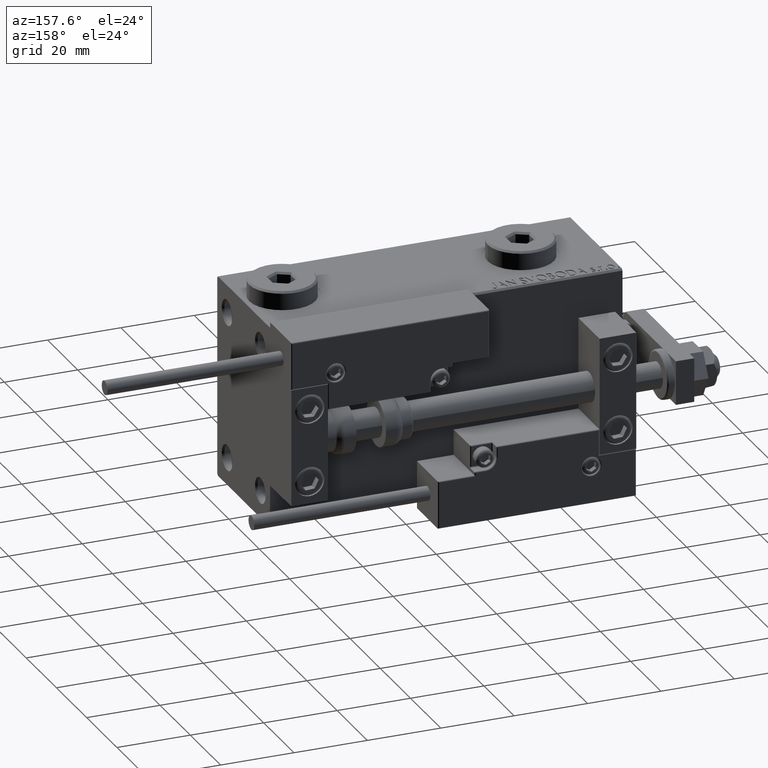
[diagram: clean part render]
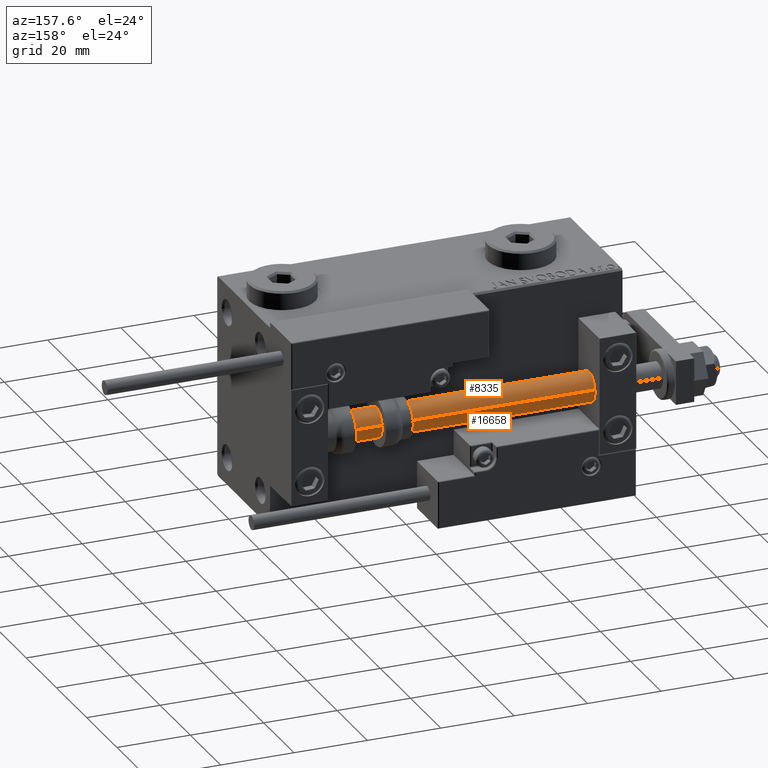
[diagram: same view with one multi-face feature highlighted, each face labeled with its STEP entity id]
A machine part, auxiliary view. The highlighted faces form ONE feature: a constant-radius fillet chain: 2 tangent blend faces with common blend radius 4 mm. The faces share edges in the B-rep.
Their STEP definitions:
[1] entity #8335 (Cylinder):
#1564 = DIRECTION ( 'NONE',  ( 1.000000000000000000, 0.000000000000000000, 0.000000000000000000 ) ) ;
#2953 = AXIS2_PLACEMENT_3D ( 'NONE', #23759, #15511, #31731 ) ;
#4602 = EDGE_CURVE ( 'NONE', #37603, #23300, #21776, .T. ) ;
#6049 = CARTESIAN_POINT ( 'NONE',  ( 4.000000000000000000, 4.898587196589412829E-16, 96.00000000000000000 ) ) ;
#6079 = DIRECTION ( 'NONE',  ( -0.000000000000000000, -0.000000000000000000, 1.000000000000000000 ) ) ;
#7362 = ORIENTED_EDGE ( 'NONE', *, *, #4602, .T. ) ;
#8335 = ADVANCED_FACE ( 'NONE', ( #23059 ), #38470, .T. ) ;
#9534 = CARTESIAN_POINT ( 'NONE',  ( 0.000000000000000000, 0.000000000000000000, 2.000000000000029310 ) ) ;
#11443 = CIRCLE ( 'NONE', #2953, 4.000000000000000000 ) ;
#14154 = AXIS2_PLACEMENT_3D ( 'NONE', #9534, #6079, #1564 ) ;
#15150 = ORIENTED_EDGE ( 'NONE', *, *, #25558, .T. ) ;
#15511 = DIRECTION ( 'NONE',  ( 0.000000000000000000, 0.000000000000000000, 1.000000000000000000 ) ) ;
#17189 = ORIENTED_EDGE ( 'NONE', *, *, #42707, .F. ) ;
#19423 = CARTESIAN_POINT ( 'NONE',  ( -4.000000000000000000, 0.000000000000000000, 96.00000000000000000 ) ) ;
#21444 = ORIENTED_EDGE ( 'NONE', *, *, #51808, .F. ) ;
#21593 = DIRECTION ( 'NONE',  ( -0.000000000000000000, -0.000000000000000000, -1.000000000000000000 ) ) ;
#21776 = CIRCLE ( 'NONE', #14154, 4.000000000000000000 ) ;
#21897 = EDGE_LOOP ( 'NONE', ( #21444, #15150, #7362, #17189 ) ) ;
#23059 = FACE_OUTER_BOUND ( 'NONE', #21897, .T. ) ;
#23300 = VERTEX_POINT ( 'NONE', #31666 ) ;
#23759 = CARTESIAN_POINT ( 'NONE',  ( 0.000000000000000000, 0.000000000000000000, 96.00000000000000000 ) ) ;
#25201 = VERTEX_POINT ( 'NONE', #42368 ) ;
#25558 = EDGE_CURVE ( 'NONE', #42599, #37603, #41770, .T. ) ;
#26272 = CARTESIAN_POINT ( 'NONE',  ( 4.000000000000000000, 4.898587196589412829E-16, 2.000000000000029310 ) ) ;
#30248 = DIRECTION ( 'NONE',  ( -0.000000000000000000, -0.000000000000000000, -1.000000000000000000 ) ) ;
#30748 = VECTOR ( 'NONE', #21593, 1000.000000000000000 ) ;
#31666 = CARTESIAN_POINT ( 'NONE',  ( -4.000000000000000000, 0.000000000000000000, 2.000000000000029310 ) ) ;
#31731 = DIRECTION ( 'NONE',  ( 1.000000000000000000, 0.000000000000000000, 0.000000000000000000 ) ) ;
#32175 = LINE ( 'NONE', #19423, #34991 ) ;
#34991 = VECTOR ( 'NONE', #51815, 1000.000000000000000 ) ;
#37603 = VERTEX_POINT ( 'NONE', #26272 ) ;
#38036 = AXIS2_PLACEMENT_3D ( 'NONE', #39256, #30248, #46942 ) ;
#38057 = CARTESIAN_POINT ( 'NONE',  ( 4.000000000000000000, 4.898587196589412829E-16, 96.00000000000000000 ) ) ;
#38470 = CYLINDRICAL_SURFACE ( 'NONE', #38036, 4.000000000000000000 ) ;
#39256 = CARTESIAN_POINT ( 'NONE',  ( 0.000000000000000000, 0.000000000000000000, 96.00000000000000000 ) ) ;
#41770 = LINE ( 'NONE', #38057, #30748 ) ;
#42368 = CARTESIAN_POINT ( 'NONE',  ( -4.000000000000000000, 0.000000000000000000, 96.00000000000000000 ) ) ;
#42599 = VERTEX_POINT ( 'NONE', #6049 ) ;
#42707 = EDGE_CURVE ( 'NONE', #25201, #23300, #32175, .T. ) ;
#46942 = DIRECTION ( 'NONE',  ( -1.000000000000000000, 0.000000000000000000, 0.000000000000000000 ) ) ;
#51808 = EDGE_CURVE ( 'NONE', #42599, #25201, #11443, .T. ) ;
#51815 = DIRECTION ( 'NONE',  ( -0.000000000000000000, -0.000000000000000000, -1.000000000000000000 ) ) ;
[2] entity #16658 (Cylinder):
#181 = EDGE_CURVE ( 'NONE', #25201, #42599, #50471, .T. ) ;
#3596 = CIRCLE ( 'NONE', #35707, 4.000000000000000000 ) ;
#6049 = CARTESIAN_POINT ( 'NONE',  ( 4.000000000000000000, 4.898587196589412829E-16, 96.00000000000000000 ) ) ;
#6633 = AXIS2_PLACEMENT_3D ( 'NONE', #9836, #34267, #17517 ) ;
#6968 = DIRECTION ( 'NONE',  ( 1.000000000000000000, 0.000000000000000000, 0.000000000000000000 ) ) ;
#8879 = ORIENTED_EDGE ( 'NONE', *, *, #181, .F. ) ;
#9389 = ORIENTED_EDGE ( 'NONE', *, *, #25973, .T. ) ;
#9836 = CARTESIAN_POINT ( 'NONE',  ( 0.000000000000000000, 0.000000000000000000, 96.00000000000000000 ) ) ;
#16658 = ADVANCED_FACE ( 'NONE', ( #22320 ), #33744, .T. ) ;
#17517 = DIRECTION ( 'NONE',  ( -1.000000000000000000, 0.000000000000000000, 0.000000000000000000 ) ) ;
#18106 = EDGE_LOOP ( 'NONE', ( #24678, #8879, #41389, #9389 ) ) ;
#19423 = CARTESIAN_POINT ( 'NONE',  ( -4.000000000000000000, 0.000000000000000000, 96.00000000000000000 ) ) ;
#21593 = DIRECTION ( 'NONE',  ( -0.000000000000000000, -0.000000000000000000, -1.000000000000000000 ) ) ;
#22320 = FACE_OUTER_BOUND ( 'NONE', #18106, .T. ) ;
#23300 = VERTEX_POINT ( 'NONE', #31666 ) ;
#24678 = ORIENTED_EDGE ( 'NONE', *, *, #25558, .F. ) ;
#25201 = VERTEX_POINT ( 'NONE', #42368 ) ;
#25558 = EDGE_CURVE ( 'NONE', #42599, #37603, #41770, .T. ) ;
#25973 = EDGE_CURVE ( 'NONE', #23300, #37603, #3596, .T. ) ;
#26272 = CARTESIAN_POINT ( 'NONE',  ( 4.000000000000000000, 4.898587196589412829E-16, 2.000000000000029310 ) ) ;
#27953 = CARTESIAN_POINT ( 'NONE',  ( 0.000000000000000000, 0.000000000000000000, 96.00000000000000000 ) ) ;
#28433 = AXIS2_PLACEMENT_3D ( 'NONE', #27953, #43343, #6968 ) ;
#29527 = DIRECTION ( 'NONE',  ( -0.000000000000000000, -0.000000000000000000, 1.000000000000000000 ) ) ;
#30748 = VECTOR ( 'NONE', #21593, 1000.000000000000000 ) ;
#31666 = CARTESIAN_POINT ( 'NONE',  ( -4.000000000000000000, 0.000000000000000000, 2.000000000000029310 ) ) ;
#32175 = LINE ( 'NONE', #19423, #34991 ) ;
#32719 = DIRECTION ( 'NONE',  ( 1.000000000000000000, 0.000000000000000000, 0.000000000000000000 ) ) ;
#33744 = CYLINDRICAL_SURFACE ( 'NONE', #6633, 4.000000000000000000 ) ;
#34267 = DIRECTION ( 'NONE',  ( -0.000000000000000000, -0.000000000000000000, -1.000000000000000000 ) ) ;
#34991 = VECTOR ( 'NONE', #51815, 1000.000000000000000 ) ;
#35707 = AXIS2_PLACEMENT_3D ( 'NONE', #45954, #29527, #32719 ) ;
#37603 = VERTEX_POINT ( 'NONE', #26272 ) ;
#38057 = CARTESIAN_POINT ( 'NONE',  ( 4.000000000000000000, 4.898587196589412829E-16, 96.00000000000000000 ) ) ;
#41389 = ORIENTED_EDGE ( 'NONE', *, *, #42707, .T. ) ;
#41770 = LINE ( 'NONE', #38057, #30748 ) ;
#42368 = CARTESIAN_POINT ( 'NONE',  ( -4.000000000000000000, 0.000000000000000000, 96.00000000000000000 ) ) ;
#42599 = VERTEX_POINT ( 'NONE', #6049 ) ;
#42707 = EDGE_CURVE ( 'NONE', #25201, #23300, #32175, .T. ) ;
#43343 = DIRECTION ( 'NONE',  ( 0.000000000000000000, 0.000000000000000000, 1.000000000000000000 ) ) ;
#45954 = CARTESIAN_POINT ( 'NONE',  ( 0.000000000000000000, 0.000000000000000000, 2.000000000000029310 ) ) ;
#50471 = CIRCLE ( 'NONE', #28433, 4.000000000000000000 ) ;
#51815 = DIRECTION ( 'NONE',  ( -0.000000000000000000, -0.000000000000000000, -1.000000000000000000 ) ) ;